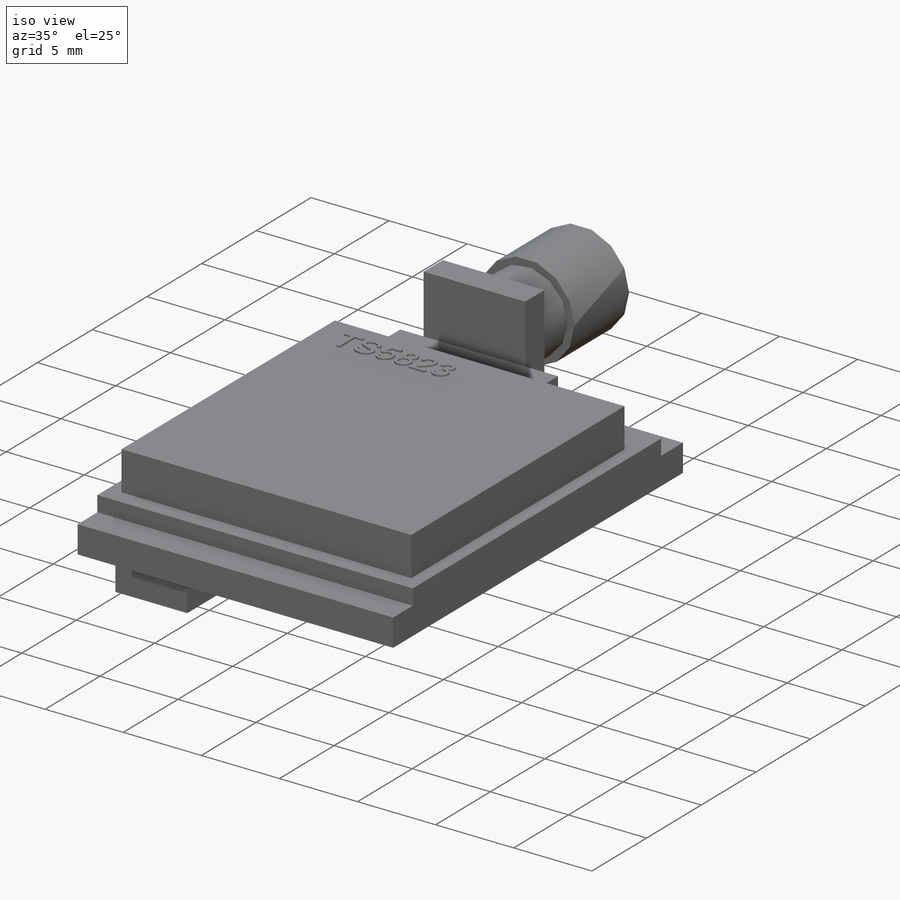
[diagram: iso view]
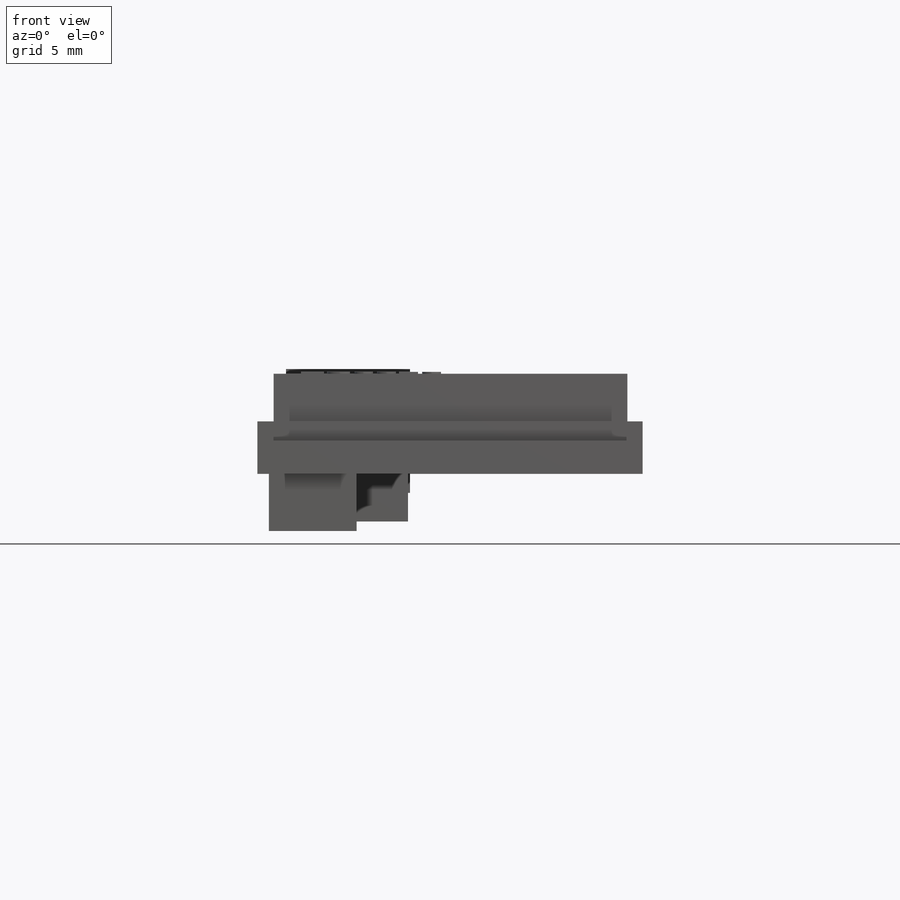
[diagram: front view]
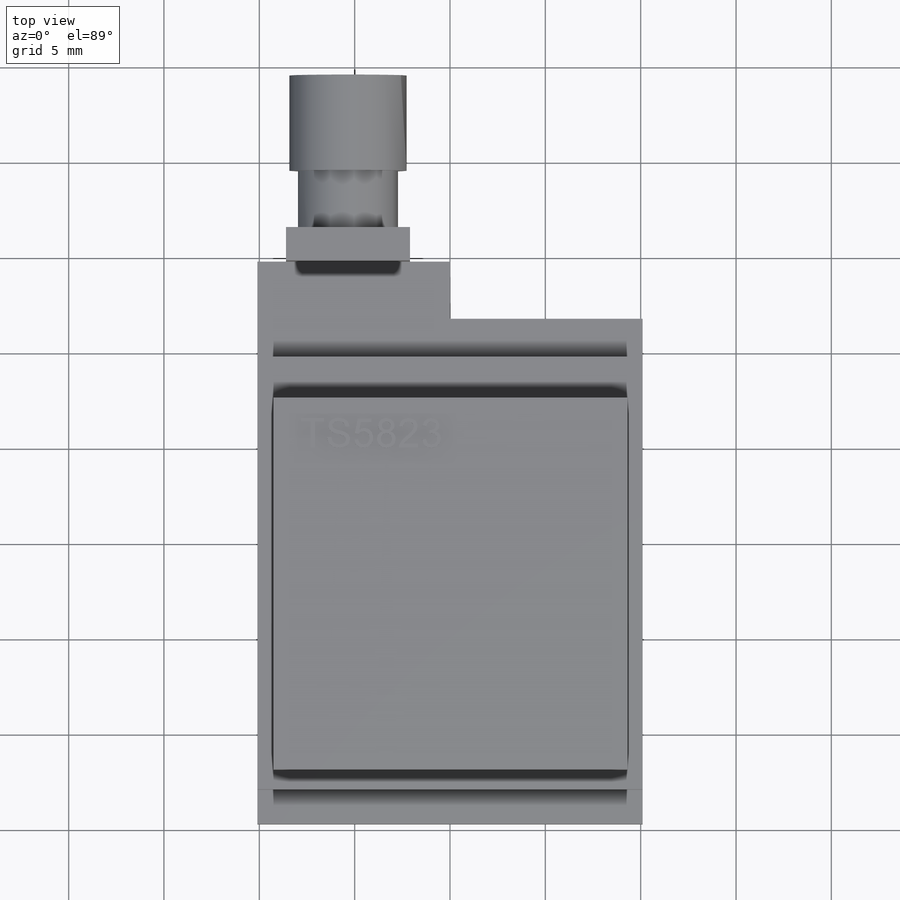
[diagram: top view]
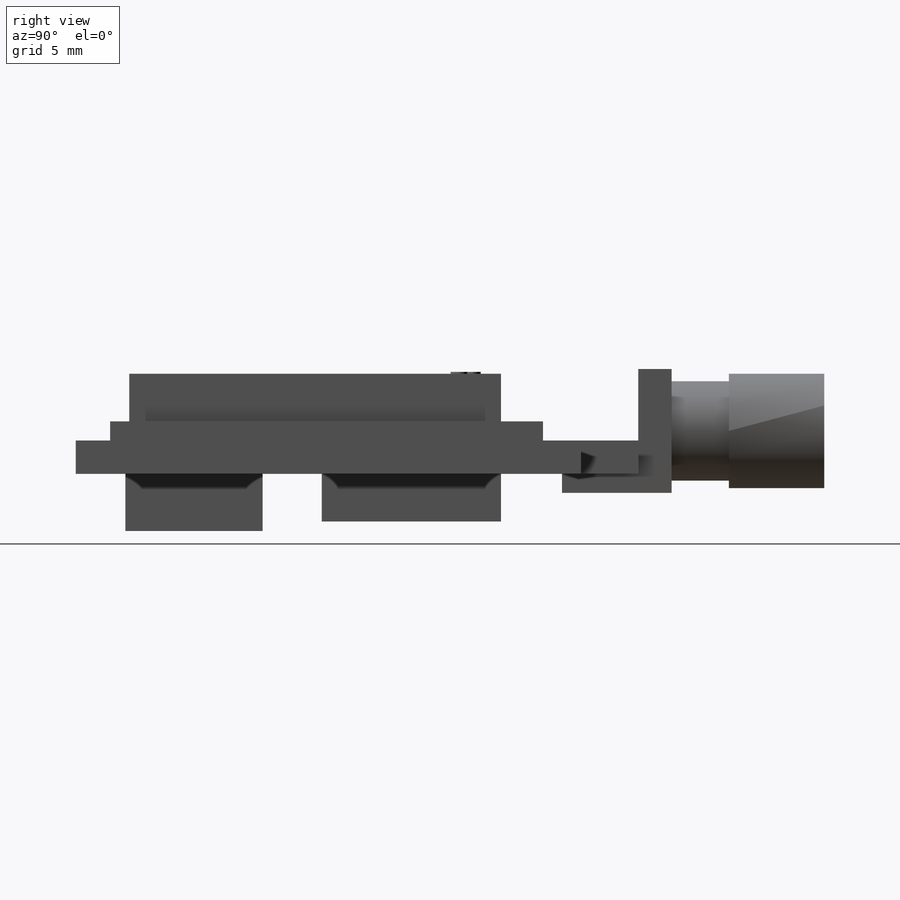
[diagram: right view]
SOLIDWORKS PART (.sldprt)
format: sldprt  version: not decoded by parser v0  size: 738,816 bytes
history: native  units: mm
features: sketch x15, extrude x11, cut_extrude x4, plane x3, pattern_linear x2, material x1 (+10 scaffold rows collapsed)
feature tree (46):
  scaffold x10  (default folders/planes/origin — collapsed)
  material  "Material <not specified>"
  plane  "Спереди"
  plane  "Сверху"
  plane  "Справа"
  sketch  "Эскиз1"  dims[D1=29.5mm D2=20.2mm]
  extrude  "main-pcb"  Depth=1.75mm
  sketch  "Эскиз2"  dims[D1=1.8mm D2=5.0mm]
  extrude  "radio-module-pcb"  Depth=1mm
  sketch  "Эскиз3"  dims[D1=19.5mm D2=18.55mm D3=1.0mm D4=0.8mm]
  extrude  "radio-module"  Depth=2.5mm
  sketch  "Эскиз4"  dims[D1=1.5mm D2=6.5mm D3=6.5mm D4=1.0mm]
  extrude  "antenna-socket"  Depth=1.75mm
  sketch  "Эскиз5"  dims[D1=5.25mm]
  extrude  "antenna-ring"  Depth=3mm
  sketch  "Эскиз6"  dims[D1=6.15mm]
  extrude  "antenna-nut"  Depth=5mm
  sketch  "Эскиз7"  dims[D1=1.0mm D2=1.0mm]
  cut_extrude  "antenna-connector"  Depth=2mm
  sketch  "Эскиз9"  dims[D1=4.0mm D2=1.0mm D3=4.0mm D4=1.0mm]
  extrude  "antenna-leg"  [1 undecoded]
  sketch  "Эскиз17"
  extrude  "NAME-TS5823"  Depth=0.1mm
  sketch  "Эскиз18"  dims[D1=10.1mm D2=3.0mm]
  cut_extrude  "pcb-cut-out"  [1 undecoded]
  sketch  "Эскиз19"  dims[D1=5.5mm D2=9.4mm D3=2.4mm D4=7.2mm]
  extrude  "Бобышка-Вытянуть1"  Depth=2.5mm
  sketch  "Эскиз21"  dims[D1=0.8mm D2=2.0mm]
  cut_extrude  "jimpes-switch"  Depth=0.4mm
  pattern_linear  "Линейный массив1"  Count1=6 Count2=1 Spacing1=1.5mm Spacing2=10mm
  sketch  "Эскиз22"  dims[D1=7.2mm D2=4.6mm D3=0.6mm D4=2.6mm]
  extrude  "Бобышка-Вытянуть2"  Depth=3mm
  sketch  "Эскиз23"  dims[D1=0.5mm D2=0.5mm]
  cut_extrude  "Вырез-Вытянуть4"  Depth=4mm
  sketch  "Эскиз24"  dims[D1=1.2mm D2=0.6mm D3=0.4mm]
  extrude  "Бобышка-Вытянуть3"  Depth=3mm
  pattern_linear  "Линейный массив2"  Count1=3 Count2=3 Spacing1=1mm Spacing2=1mm
decode coverage: 29 of 32 modeling features carry decoded parameters
note: 2 parameter values undecoded
note: suppression state not decoded; provenance and decode notes live in map.json
